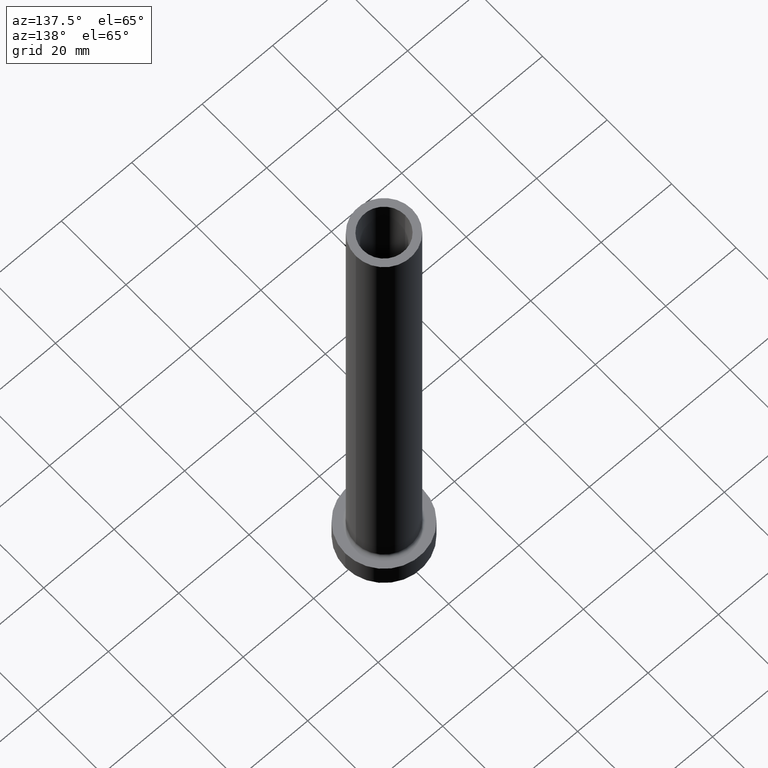
[diagram: clean part render]
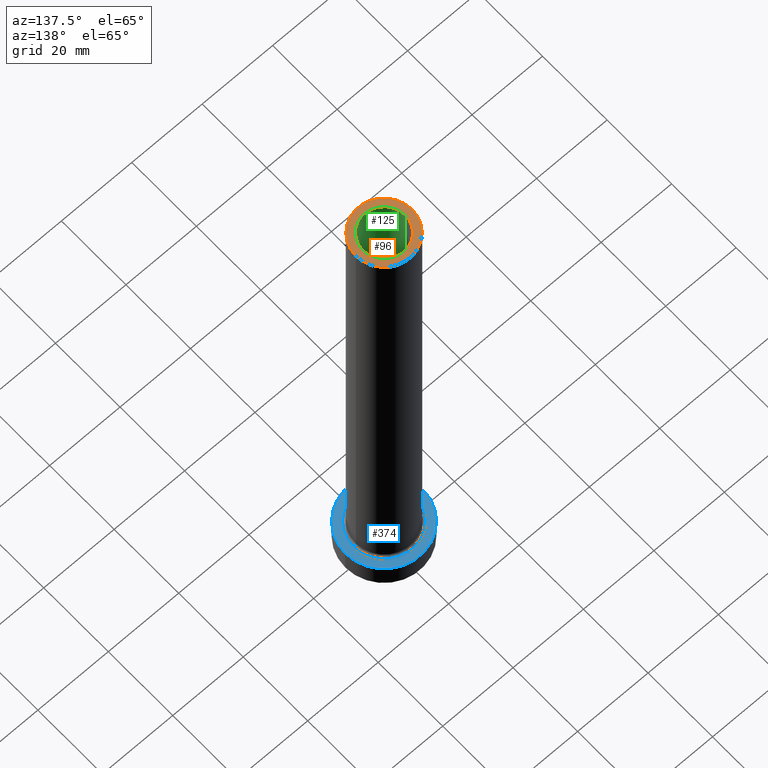
[diagram: same view with three faces highlighted in distinct colors, each labeled with its STEP entity id]
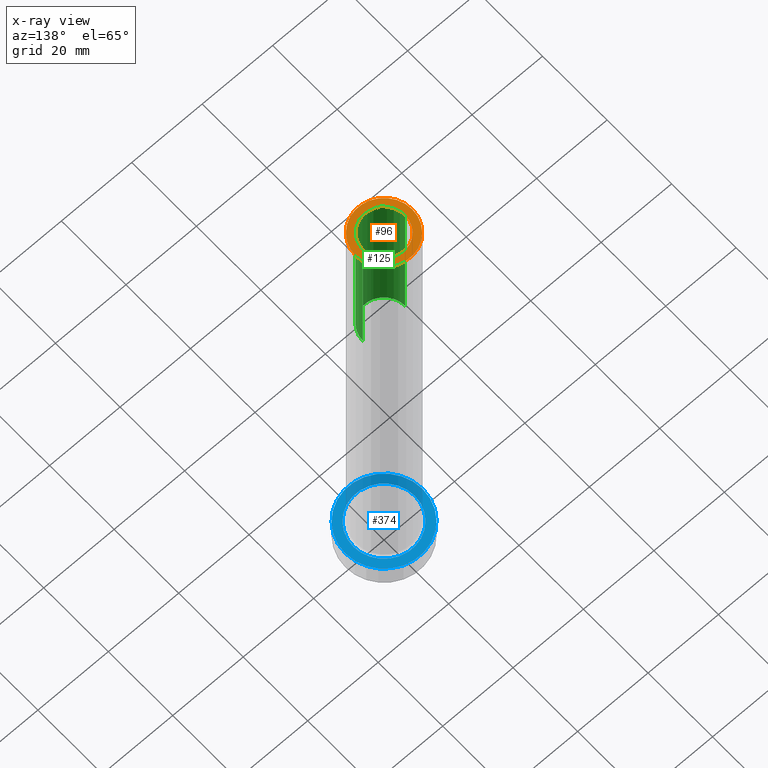
[diagram: x-ray of the same camera — body ghosted, the three highlighted faces saturated]
A machine part, auxiliary view with three faces highlighted in distinct colors.
The next image is the same camera in x-ray (body ghosted, the three faces saturated) — at least one of them is partly hidden behind the body in this view.
Their STEP definitions:

[orange] entity #96 — the highlighted planar face has unit normal (0, 0, 1).
#8 = VERTEX_POINT ( 'NONE', #444 ) ;
#22 = CIRCLE ( 'NONE', #182, 6.000000000000000888 ) ;
#25 = ORIENTED_EDGE ( 'NONE', *, *, #80, .F. ) ;
#26 = CARTESIAN_POINT ( 'NONE',  ( 0.000000000000000000, 0.000000000000000000, 150.0000000000000000 ) ) ;
#27 = ORIENTED_EDGE ( 'NONE', *, *, #231, .T. ) ;
#45 = FACE_OUTER_BOUND ( 'NONE', #431, .T. ) ;
#46 = AXIS2_PLACEMENT_3D ( 'NONE', #26, #271, #375 ) ;
#51 = EDGE_LOOP ( 'NONE', ( #351, #25 ) ) ;
#53 = VERTEX_POINT ( 'NONE', #115 ) ;
#63 = DIRECTION ( 'NONE',  ( 1.000000000000000000, 0.000000000000000000, 0.000000000000000000 ) ) ;
#80 = EDGE_CURVE ( 'NONE', #230, #53, #22, .T. ) ;
#96 = ADVANCED_FACE ( 'NONE', ( #228, #45 ), #190, .T. ) ;
#100 = CARTESIAN_POINT ( 'NONE',  ( 6.000000000000000888, 7.347880794884119736E-16, 150.0000000000000000 ) ) ;
#103 = EDGE_CURVE ( 'NONE', #53, #230, #191, .T. ) ;
#115 = CARTESIAN_POINT ( 'NONE',  ( -6.000000000000000888, 0.000000000000000000, 150.0000000000000000 ) ) ;
#132 = DIRECTION ( 'NONE',  ( 0.000000000000000000, 0.000000000000000000, 1.000000000000000000 ) ) ;
#146 = VERTEX_POINT ( 'NONE', #269 ) ;
#152 = EDGE_CURVE ( 'NONE', #8, #146, #276, .T. ) ;
#161 = CARTESIAN_POINT ( 'NONE',  ( 0.000000000000000000, 0.000000000000000000, 150.0000000000000000 ) ) ;
#182 = AXIS2_PLACEMENT_3D ( 'NONE', #365, #307, #267 ) ;
#190 = PLANE ( 'NONE',  #290 ) ;
#191 = CIRCLE ( 'NONE', #46, 6.000000000000000888 ) ;
#228 = FACE_BOUND ( 'NONE', #51, .T. ) ;
#230 = VERTEX_POINT ( 'NONE', #100 ) ;
#231 = EDGE_CURVE ( 'NONE', #146, #8, #410, .T. ) ;
#244 = CARTESIAN_POINT ( 'NONE',  ( 0.000000000000000000, 0.000000000000000000, 150.0000000000000000 ) ) ;
#267 = DIRECTION ( 'NONE',  ( 1.000000000000000000, 0.000000000000000000, 0.000000000000000000 ) ) ;
#269 = CARTESIAN_POINT ( 'NONE',  ( -8.000000000000000000, 0.000000000000000000, 150.0000000000000000 ) ) ;
#271 = DIRECTION ( 'NONE',  ( 0.000000000000000000, 0.000000000000000000, 1.000000000000000000 ) ) ;
#276 = CIRCLE ( 'NONE', #352, 8.000000000000000000 ) ;
#282 = DIRECTION ( 'NONE',  ( 1.000000000000000000, 0.000000000000000000, -0.000000000000000000 ) ) ;
#290 = AXIS2_PLACEMENT_3D ( 'NONE', #451, #132, #282 ) ;
#307 = DIRECTION ( 'NONE',  ( 0.000000000000000000, 0.000000000000000000, 1.000000000000000000 ) ) ;
#336 = ORIENTED_EDGE ( 'NONE', *, *, #152, .T. ) ;
#337 = AXIS2_PLACEMENT_3D ( 'NONE', #244, #388, #63 ) ;
#351 = ORIENTED_EDGE ( 'NONE', *, *, #103, .F. ) ;
#352 = AXIS2_PLACEMENT_3D ( 'NONE', #161, #411, #377 ) ;
#365 = CARTESIAN_POINT ( 'NONE',  ( 0.000000000000000000, 0.000000000000000000, 150.0000000000000000 ) ) ;
#375 = DIRECTION ( 'NONE',  ( 1.000000000000000000, 0.000000000000000000, 0.000000000000000000 ) ) ;
#377 = DIRECTION ( 'NONE',  ( 1.000000000000000000, 0.000000000000000000, 0.000000000000000000 ) ) ;
#388 = DIRECTION ( 'NONE',  ( 0.000000000000000000, 0.000000000000000000, 1.000000000000000000 ) ) ;
#410 = CIRCLE ( 'NONE', #337, 8.000000000000000000 ) ;
#411 = DIRECTION ( 'NONE',  ( 0.000000000000000000, 0.000000000000000000, 1.000000000000000000 ) ) ;
#431 = EDGE_LOOP ( 'NONE', ( #27, #336 ) ) ;
#444 = CARTESIAN_POINT ( 'NONE',  ( 8.000000000000000000, 9.797174393178825657E-16, 150.0000000000000000 ) ) ;
#451 = CARTESIAN_POINT ( 'NONE',  ( 0.000000000000000000, 0.000000000000000000, 150.0000000000000000 ) ) ;

[blue] entity #374 — the highlighted planar face has unit normal (0, 0, 1).
#38 = CIRCLE ( 'NONE', #84, 8.699999999999999289 ) ;
#65 = DIRECTION ( 'NONE',  ( 1.000000000000000000, 0.000000000000000000, 0.000000000000000000 ) ) ;
#68 = FACE_BOUND ( 'NONE', #406, .T. ) ;
#84 = AXIS2_PLACEMENT_3D ( 'NONE', #97, #386, #270 ) ;
#93 = AXIS2_PLACEMENT_3D ( 'NONE', #114, #402, #449 ) ;
#97 = CARTESIAN_POINT ( 'NONE',  ( 0.000000000000000000, 0.000000000000000000, 7.000000000000000000 ) ) ;
#105 = CARTESIAN_POINT ( 'NONE',  ( -11.00000000000000000, 0.000000000000000000, 7.000000000000000000 ) ) ;
#107 = CARTESIAN_POINT ( 'NONE',  ( 11.00000000000000000, 1.347111479062088405E-15, 7.000000000000000000 ) ) ;
#114 = CARTESIAN_POINT ( 'NONE',  ( 0.000000000000000000, 0.000000000000000000, 7.000000000000000000 ) ) ;
#123 = VERTEX_POINT ( 'NONE', #126 ) ;
#126 = CARTESIAN_POINT ( 'NONE',  ( 8.699999999999999289, 0.000000000000000000, 7.000000000000006217 ) ) ;
#160 = CIRCLE ( 'NONE', #443, 11.00000000000000000 ) ;
#177 = DIRECTION ( 'NONE',  ( 0.000000000000000000, 0.000000000000000000, 1.000000000000000000 ) ) ;
#179 = AXIS2_PLACEMENT_3D ( 'NONE', #357, #177, #185 ) ;
#181 = ORIENTED_EDGE ( 'NONE', *, *, #250, .T. ) ;
#185 = DIRECTION ( 'NONE',  ( 1.000000000000000000, 0.000000000000000000, -0.000000000000000000 ) ) ;
#187 = CIRCLE ( 'NONE', #390, 11.00000000000000000 ) ;
#213 = VERTEX_POINT ( 'NONE', #241 ) ;
#219 = PLANE ( 'NONE',  #179 ) ;
#239 = CIRCLE ( 'NONE', #93, 8.699999999999999289 ) ;
#241 = CARTESIAN_POINT ( 'NONE',  ( -8.699999999999999289, 1.065442715258197248E-15, 7.000000000000006217 ) ) ;
#250 = EDGE_CURVE ( 'NONE', #335, #361, #187, .T. ) ;
#252 = EDGE_LOOP ( 'NONE', ( #181, #433 ) ) ;
#256 = FACE_OUTER_BOUND ( 'NONE', #252, .T. ) ;
#270 = DIRECTION ( 'NONE',  ( 1.000000000000000000, 0.000000000000000000, 0.000000000000000000 ) ) ;
#289 = CARTESIAN_POINT ( 'NONE',  ( 0.000000000000000000, 0.000000000000000000, 7.000000000000000000 ) ) ;
#301 = ORIENTED_EDGE ( 'NONE', *, *, #415, .T. ) ;
#308 = EDGE_CURVE ( 'NONE', #361, #335, #160, .T. ) ;
#322 = CARTESIAN_POINT ( 'NONE',  ( 0.000000000000000000, 0.000000000000000000, 7.000000000000000000 ) ) ;
#335 = VERTEX_POINT ( 'NONE', #105 ) ;
#357 = CARTESIAN_POINT ( 'NONE',  ( 0.000000000000000000, 0.000000000000000000, 7.000000000000000000 ) ) ;
#361 = VERTEX_POINT ( 'NONE', #107 ) ;
#374 = ADVANCED_FACE ( 'NONE', ( #68, #256 ), #219, .T. ) ;
#386 = DIRECTION ( 'NONE',  ( -0.000000000000000000, -0.000000000000000000, -1.000000000000000000 ) ) ;
#390 = AXIS2_PLACEMENT_3D ( 'NONE', #322, #461, #400 ) ;
#400 = DIRECTION ( 'NONE',  ( 1.000000000000000000, 0.000000000000000000, 0.000000000000000000 ) ) ;
#402 = DIRECTION ( 'NONE',  ( -0.000000000000000000, -0.000000000000000000, -1.000000000000000000 ) ) ;
#406 = EDGE_LOOP ( 'NONE', ( #441, #301 ) ) ;
#415 = EDGE_CURVE ( 'NONE', #213, #123, #239, .T. ) ;
#416 = EDGE_CURVE ( 'NONE', #123, #213, #38, .T. ) ;
#432 = DIRECTION ( 'NONE',  ( 0.000000000000000000, 0.000000000000000000, 1.000000000000000000 ) ) ;
#433 = ORIENTED_EDGE ( 'NONE', *, *, #308, .T. ) ;
#441 = ORIENTED_EDGE ( 'NONE', *, *, #416, .T. ) ;
#443 = AXIS2_PLACEMENT_3D ( 'NONE', #289, #432, #65 ) ;
#449 = DIRECTION ( 'NONE',  ( 1.000000000000000000, 0.000000000000000000, 0.000000000000000000 ) ) ;
#461 = DIRECTION ( 'NONE',  ( 0.000000000000000000, 0.000000000000000000, 1.000000000000000000 ) ) ;

[green] entity #125 — the highlighted cylindrical surface (edge-blend (fillet) strip) has radius 6 mm, axis along (0, 0, -1).
#1 = CARTESIAN_POINT ( 'NONE',  ( -6.000000000000000888, 0.000000000000000000, 150.0000000000000000 ) ) ;
#5 = CARTESIAN_POINT ( 'NONE',  ( -6.000000000000000888, 0.000000000000000000, 105.0000000000000000 ) ) ;
#14 = DIRECTION ( 'NONE',  ( 1.000000000000000000, 0.000000000000000000, 0.000000000000000000 ) ) ;
#18 = FACE_OUTER_BOUND ( 'NONE', #368, .T. ) ;
#26 = CARTESIAN_POINT ( 'NONE',  ( 0.000000000000000000, 0.000000000000000000, 150.0000000000000000 ) ) ;
#46 = AXIS2_PLACEMENT_3D ( 'NONE', #26, #271, #375 ) ;
#50 = EDGE_CURVE ( 'NONE', #275, #401, #300, .T. ) ;
#53 = VERTEX_POINT ( 'NONE', #115 ) ;
#54 = CARTESIAN_POINT ( 'NONE',  ( 6.000000000000000888, 7.347880794884119736E-16, 150.0000000000000000 ) ) ;
#72 = VECTOR ( 'NONE', #435, 1000.000000000000000 ) ;
#90 = DIRECTION ( 'NONE',  ( -1.000000000000000000, 0.000000000000000000, 0.000000000000000000 ) ) ;
#98 = AXIS2_PLACEMENT_3D ( 'NONE', #309, #349, #90 ) ;
#100 = CARTESIAN_POINT ( 'NONE',  ( 6.000000000000000888, 7.347880794884119736E-16, 150.0000000000000000 ) ) ;
#103 = EDGE_CURVE ( 'NONE', #53, #230, #191, .T. ) ;
#106 = AXIS2_PLACEMENT_3D ( 'NONE', #304, #446, #14 ) ;
#115 = CARTESIAN_POINT ( 'NONE',  ( -6.000000000000000888, 0.000000000000000000, 150.0000000000000000 ) ) ;
#122 = EDGE_CURVE ( 'NONE', #230, #401, #210, .T. ) ;
#125 = ADVANCED_FACE ( 'NONE', ( #18 ), #344, .F. ) ;
#128 = DIRECTION ( 'NONE',  ( 0.000000000000000000, 0.000000000000000000, -1.000000000000000000 ) ) ;
#191 = CIRCLE ( 'NONE', #46, 6.000000000000000888 ) ;
#193 = ORIENTED_EDGE ( 'NONE', *, *, #122, .T. ) ;
#210 = LINE ( 'NONE', #54, #305 ) ;
#230 = VERTEX_POINT ( 'NONE', #100 ) ;
#271 = DIRECTION ( 'NONE',  ( 0.000000000000000000, 0.000000000000000000, 1.000000000000000000 ) ) ;
#275 = VERTEX_POINT ( 'NONE', #5 ) ;
#284 = ORIENTED_EDGE ( 'NONE', *, *, #103, .T. ) ;
#300 = CIRCLE ( 'NONE', #106, 6.000000000000000888 ) ;
#304 = CARTESIAN_POINT ( 'NONE',  ( 0.000000000000000000, 0.000000000000000000, 105.0000000000000000 ) ) ;
#305 = VECTOR ( 'NONE', #128, 1000.000000000000000 ) ;
#309 = CARTESIAN_POINT ( 'NONE',  ( 0.000000000000000000, 0.000000000000000000, 150.0000000000000000 ) ) ;
#323 = LINE ( 'NONE', #1, #72 ) ;
#340 = ORIENTED_EDGE ( 'NONE', *, *, #370, .F. ) ;
#344 = CYLINDRICAL_SURFACE ( 'NONE', #98, 6.000000000000000888 ) ;
#349 = DIRECTION ( 'NONE',  ( 0.000000000000000000, 0.000000000000000000, -1.000000000000000000 ) ) ;
#363 = CARTESIAN_POINT ( 'NONE',  ( 6.000000000000000888, 7.347880794884119736E-16, 105.0000000000000000 ) ) ;
#368 = EDGE_LOOP ( 'NONE', ( #284, #193, #419, #340 ) ) ;
#370 = EDGE_CURVE ( 'NONE', #53, #275, #323, .T. ) ;
#375 = DIRECTION ( 'NONE',  ( 1.000000000000000000, 0.000000000000000000, 0.000000000000000000 ) ) ;
#401 = VERTEX_POINT ( 'NONE', #363 ) ;
#419 = ORIENTED_EDGE ( 'NONE', *, *, #50, .F. ) ;
#435 = DIRECTION ( 'NONE',  ( 0.000000000000000000, 0.000000000000000000, -1.000000000000000000 ) ) ;
#446 = DIRECTION ( 'NONE',  ( 0.000000000000000000, 0.000000000000000000, 1.000000000000000000 ) ) ;